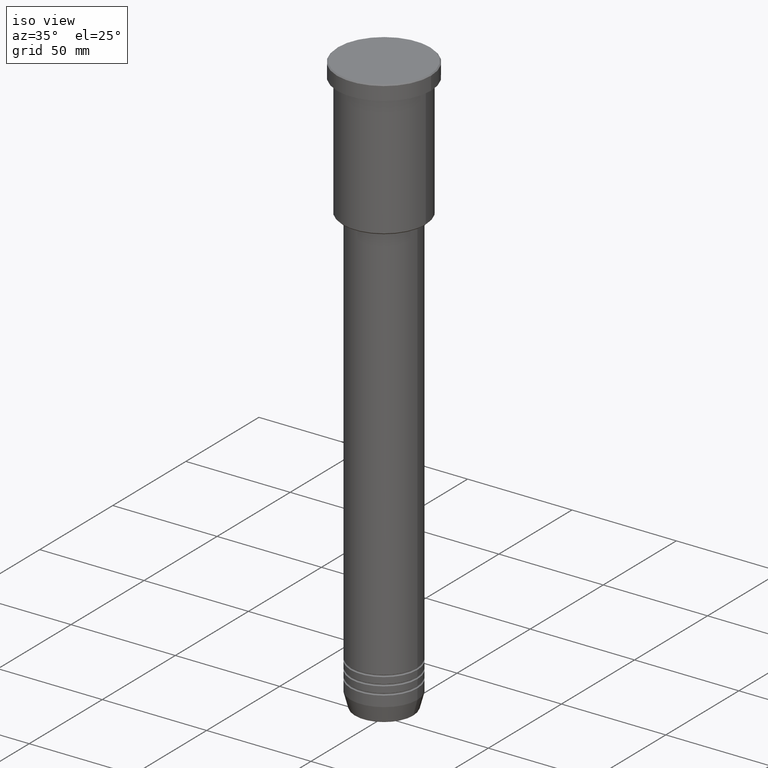
[diagram: clean part render]
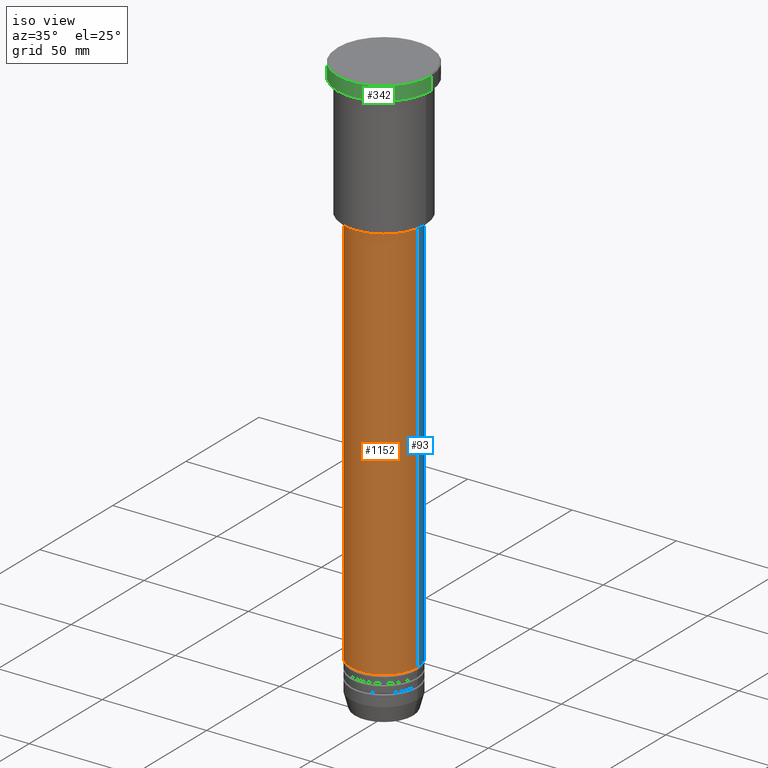
[diagram: same view with three faces highlighted in distinct colors, each labeled with its STEP entity id]
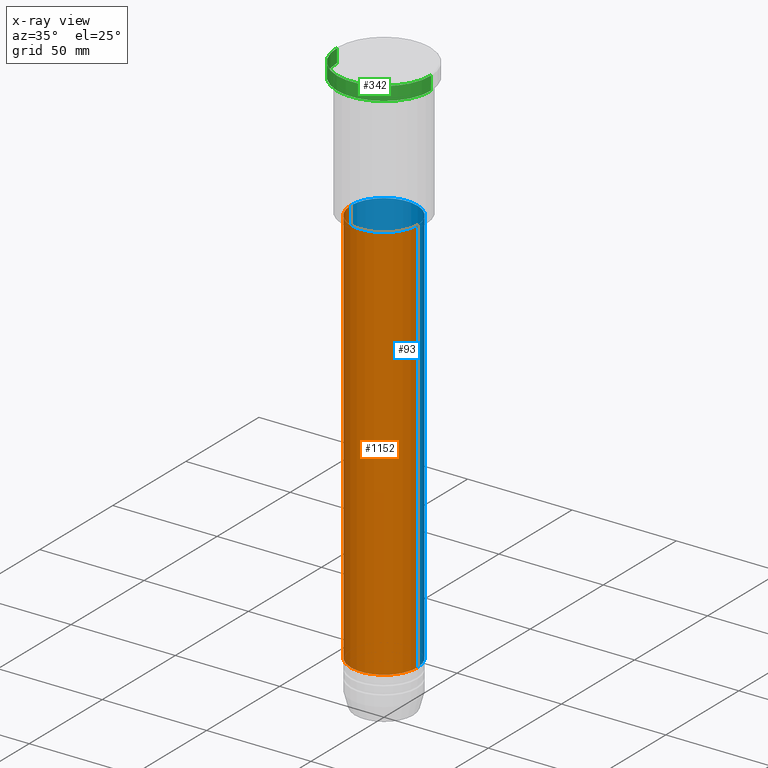
[diagram: x-ray of the same camera — body ghosted, the three highlighted faces saturated]
A machine part, iso view with three faces highlighted in distinct colors.
The next image is the same camera in x-ray (body ghosted, the three faces saturated) — at least one of them is partly hidden behind the body in this view.
Their STEP definitions:

[orange] entity #1152 — the highlighted cylindrical surface (partial cylindrical patch) has radius 16 mm, axis along (-0, -0, 1).
#5 = DIRECTION ( 'NONE',  ( -0.000000000000000000, -0.000000000000000000, 1.000000000000000000 ) ) ;
#45 = CARTESIAN_POINT ( 'NONE',  ( -16.00000000000000000, 1.959434878635765131E-15, -258.5000000000000000 ) ) ;
#120 = ORIENTED_EDGE ( 'NONE', *, *, #861, .F. ) ;
#148 = DIRECTION ( 'NONE',  ( 1.000000000000000000, 0.000000000000000000, 0.000000000000000000 ) ) ;
#219 = VERTEX_POINT ( 'NONE', #45 ) ;
#232 = CARTESIAN_POINT ( 'NONE',  ( -16.00000000000000000, 1.959434878635765131E-15, -67.00000000000000000 ) ) ;
#251 = CARTESIAN_POINT ( 'NONE',  ( 0.000000000000000000, 0.000000000000000000, -258.5000000000000000 ) ) ;
#254 = FACE_OUTER_BOUND ( 'NONE', #449, .T. ) ;
#265 = DIRECTION ( 'NONE',  ( 1.000000000000000000, 0.000000000000000000, 0.000000000000000000 ) ) ;
#292 = LINE ( 'NONE', #635, #1179 ) ;
#363 = CARTESIAN_POINT ( 'NONE',  ( 0.000000000000000000, 0.000000000000000000, -67.00000000000000000 ) ) ;
#449 = EDGE_LOOP ( 'NONE', ( #1093, #598, #899, #120 ) ) ;
#457 = LINE ( 'NONE', #1088, #905 ) ;
#547 = DIRECTION ( 'NONE',  ( -0.000000000000000000, -0.000000000000000000, 1.000000000000000000 ) ) ;
#598 = ORIENTED_EDGE ( 'NONE', *, *, #740, .T. ) ;
#635 = CARTESIAN_POINT ( 'NONE',  ( 16.00000000000000000, 0.000000000000000000, 0.000000000000000000 ) ) ;
#660 = CIRCLE ( 'NONE', #1063, 16.00000000000000000 ) ;
#670 = VERTEX_POINT ( 'NONE', #869 ) ;
#740 = EDGE_CURVE ( 'NONE', #219, #1099, #1019, .T. ) ;
#768 = CARTESIAN_POINT ( 'NONE',  ( 16.00000000000000000, 0.000000000000000000, -258.5000000000000000 ) ) ;
#777 = AXIS2_PLACEMENT_3D ( 'NONE', #797, #1166, #148 ) ;
#797 = CARTESIAN_POINT ( 'NONE',  ( 0.000000000000000000, 0.000000000000000000, 0.000000000000000000 ) ) ;
#826 = AXIS2_PLACEMENT_3D ( 'NONE', #251, #894, #265 ) ;
#861 = EDGE_CURVE ( 'NONE', #1008, #670, #660, .T. ) ;
#869 = CARTESIAN_POINT ( 'NONE',  ( 16.00000000000000000, 0.000000000000000000, -67.00000000000000000 ) ) ;
#870 = EDGE_CURVE ( 'NONE', #219, #1008, #457, .T. ) ;
#894 = DIRECTION ( 'NONE',  ( -0.000000000000000000, -0.000000000000000000, 1.000000000000000000 ) ) ;
#899 = ORIENTED_EDGE ( 'NONE', *, *, #923, .T. ) ;
#905 = VECTOR ( 'NONE', #5, 1000.000000000000000 ) ;
#910 = DIRECTION ( 'NONE',  ( -0.000000000000000000, -0.000000000000000000, 1.000000000000000000 ) ) ;
#915 = DIRECTION ( 'NONE',  ( 1.000000000000000000, 0.000000000000000000, 0.000000000000000000 ) ) ;
#923 = EDGE_CURVE ( 'NONE', #1099, #670, #292, .T. ) ;
#1008 = VERTEX_POINT ( 'NONE', #232 ) ;
#1019 = CIRCLE ( 'NONE', #826, 16.00000000000000000 ) ;
#1063 = AXIS2_PLACEMENT_3D ( 'NONE', #363, #910, #915 ) ;
#1075 = CYLINDRICAL_SURFACE ( 'NONE', #777, 16.00000000000000000 ) ;
#1088 = CARTESIAN_POINT ( 'NONE',  ( -16.00000000000000000, 1.959434878635765131E-15, 0.000000000000000000 ) ) ;
#1093 = ORIENTED_EDGE ( 'NONE', *, *, #870, .F. ) ;
#1099 = VERTEX_POINT ( 'NONE', #768 ) ;
#1152 = ADVANCED_FACE ( 'NONE', ( #254 ), #1075, .T. ) ;
#1166 = DIRECTION ( 'NONE',  ( -0.000000000000000000, -0.000000000000000000, 1.000000000000000000 ) ) ;
#1179 = VECTOR ( 'NONE', #547, 1000.000000000000000 ) ;

[blue] entity #93 — the highlighted cylindrical surface (partial cylindrical patch) has radius 16 mm, axis along (-0, -0, 1).
#5 = DIRECTION ( 'NONE',  ( -0.000000000000000000, -0.000000000000000000, 1.000000000000000000 ) ) ;
#36 = DIRECTION ( 'NONE',  ( -0.000000000000000000, -0.000000000000000000, 1.000000000000000000 ) ) ;
#45 = CARTESIAN_POINT ( 'NONE',  ( -16.00000000000000000, 1.959434878635765131E-15, -258.5000000000000000 ) ) ;
#58 = DIRECTION ( 'NONE',  ( 1.000000000000000000, 0.000000000000000000, 0.000000000000000000 ) ) ;
#93 = ADVANCED_FACE ( 'NONE', ( #482 ), #290, .T. ) ;
#99 = EDGE_LOOP ( 'NONE', ( #264, #644, #1071, #724 ) ) ;
#143 = CARTESIAN_POINT ( 'NONE',  ( 0.000000000000000000, 0.000000000000000000, -67.00000000000000000 ) ) ;
#182 = CIRCLE ( 'NONE', #439, 16.00000000000000000 ) ;
#219 = VERTEX_POINT ( 'NONE', #45 ) ;
#232 = CARTESIAN_POINT ( 'NONE',  ( -16.00000000000000000, 1.959434878635765131E-15, -67.00000000000000000 ) ) ;
#264 = ORIENTED_EDGE ( 'NONE', *, *, #636, .T. ) ;
#290 = CYLINDRICAL_SURFACE ( 'NONE', #435, 16.00000000000000000 ) ;
#292 = LINE ( 'NONE', #635, #1179 ) ;
#335 = AXIS2_PLACEMENT_3D ( 'NONE', #478, #36, #575 ) ;
#435 = AXIS2_PLACEMENT_3D ( 'NONE', #1129, #754, #848 ) ;
#439 = AXIS2_PLACEMENT_3D ( 'NONE', #143, #934, #58 ) ;
#457 = LINE ( 'NONE', #1088, #905 ) ;
#478 = CARTESIAN_POINT ( 'NONE',  ( 0.000000000000000000, 0.000000000000000000, -258.5000000000000000 ) ) ;
#482 = FACE_OUTER_BOUND ( 'NONE', #99, .T. ) ;
#547 = DIRECTION ( 'NONE',  ( -0.000000000000000000, -0.000000000000000000, 1.000000000000000000 ) ) ;
#575 = DIRECTION ( 'NONE',  ( 1.000000000000000000, 0.000000000000000000, 0.000000000000000000 ) ) ;
#576 = EDGE_CURVE ( 'NONE', #670, #1008, #182, .T. ) ;
#635 = CARTESIAN_POINT ( 'NONE',  ( 16.00000000000000000, 0.000000000000000000, 0.000000000000000000 ) ) ;
#636 = EDGE_CURVE ( 'NONE', #1099, #219, #675, .T. ) ;
#644 = ORIENTED_EDGE ( 'NONE', *, *, #870, .T. ) ;
#670 = VERTEX_POINT ( 'NONE', #869 ) ;
#675 = CIRCLE ( 'NONE', #335, 16.00000000000000000 ) ;
#724 = ORIENTED_EDGE ( 'NONE', *, *, #923, .F. ) ;
#754 = DIRECTION ( 'NONE',  ( -0.000000000000000000, -0.000000000000000000, 1.000000000000000000 ) ) ;
#768 = CARTESIAN_POINT ( 'NONE',  ( 16.00000000000000000, 0.000000000000000000, -258.5000000000000000 ) ) ;
#848 = DIRECTION ( 'NONE',  ( 1.000000000000000000, 0.000000000000000000, 0.000000000000000000 ) ) ;
#869 = CARTESIAN_POINT ( 'NONE',  ( 16.00000000000000000, 0.000000000000000000, -67.00000000000000000 ) ) ;
#870 = EDGE_CURVE ( 'NONE', #219, #1008, #457, .T. ) ;
#905 = VECTOR ( 'NONE', #5, 1000.000000000000000 ) ;
#923 = EDGE_CURVE ( 'NONE', #1099, #670, #292, .T. ) ;
#934 = DIRECTION ( 'NONE',  ( -0.000000000000000000, -0.000000000000000000, 1.000000000000000000 ) ) ;
#1008 = VERTEX_POINT ( 'NONE', #232 ) ;
#1071 = ORIENTED_EDGE ( 'NONE', *, *, #576, .F. ) ;
#1088 = CARTESIAN_POINT ( 'NONE',  ( -16.00000000000000000, 1.959434878635765131E-15, 0.000000000000000000 ) ) ;
#1099 = VERTEX_POINT ( 'NONE', #768 ) ;
#1129 = CARTESIAN_POINT ( 'NONE',  ( 0.000000000000000000, 0.000000000000000000, 0.000000000000000000 ) ) ;
#1179 = VECTOR ( 'NONE', #547, 1000.000000000000000 ) ;

[green] entity #342 — the highlighted cylindrical surface (partial cylindrical patch) has radius 22.5 mm, axis along (-0, -0, 1).
#118 = LINE ( 'NONE', #296, #216 ) ;
#126 = EDGE_CURVE ( 'NONE', #171, #297, #118, .T. ) ;
#127 = LINE ( 'NONE', #665, #437 ) ;
#136 = CARTESIAN_POINT ( 'NONE',  ( 0.000000000000000000, 0.000000000000000000, -6.999999999999995559 ) ) ;
#167 = EDGE_CURVE ( 'NONE', #297, #1001, #536, .T. ) ;
#171 = VERTEX_POINT ( 'NONE', #766 ) ;
#173 = CARTESIAN_POINT ( 'NONE',  ( 22.50000000000000000, 0.000000000000000000, -0.4999999999999379940 ) ) ;
#205 = EDGE_CURVE ( 'NONE', #274, #1001, #127, .T. ) ;
#216 = VECTOR ( 'NONE', #917, 1000.000000000000000 ) ;
#221 = CARTESIAN_POINT ( 'NONE',  ( -22.50000000000000000, 2.755455298081544778E-15, -0.4999999999999379940 ) ) ;
#250 = ORIENTED_EDGE ( 'NONE', *, *, #690, .T. ) ;
#258 = AXIS2_PLACEMENT_3D ( 'NONE', #136, #325, #948 ) ;
#274 = VERTEX_POINT ( 'NONE', #687 ) ;
#296 = CARTESIAN_POINT ( 'NONE',  ( 22.50000000000000000, 0.000000000000000000, 0.000000000000000000 ) ) ;
#297 = VERTEX_POINT ( 'NONE', #173 ) ;
#302 = CARTESIAN_POINT ( 'NONE',  ( 0.000000000000000000, 0.000000000000000000, -0.4999999999999379940 ) ) ;
#325 = DIRECTION ( 'NONE',  ( -0.000000000000000000, -0.000000000000000000, 1.000000000000000000 ) ) ;
#333 = ORIENTED_EDGE ( 'NONE', *, *, #205, .F. ) ;
#342 = ADVANCED_FACE ( 'NONE', ( #693 ), #533, .T. ) ;
#437 = VECTOR ( 'NONE', #830, 1000.000000000000000 ) ;
#533 = CYLINDRICAL_SURFACE ( 'NONE', #997, 22.50000000000000000 ) ;
#536 = CIRCLE ( 'NONE', #692, 22.50000000000000000 ) ;
#567 = DIRECTION ( 'NONE',  ( 0.000000000000000000, 0.000000000000000000, -1.000000000000000000 ) ) ;
#665 = CARTESIAN_POINT ( 'NONE',  ( -22.50000000000000000, 2.755455298081544778E-15, 0.000000000000000000 ) ) ;
#683 = CARTESIAN_POINT ( 'NONE',  ( 0.000000000000000000, 0.000000000000000000, 0.000000000000000000 ) ) ;
#684 = EDGE_LOOP ( 'NONE', ( #333, #250, #1057, #998 ) ) ;
#687 = CARTESIAN_POINT ( 'NONE',  ( -22.50000000000000000, 2.755455298081544778E-15, -6.999999999999995559 ) ) ;
#690 = EDGE_CURVE ( 'NONE', #274, #171, #846, .T. ) ;
#692 = AXIS2_PLACEMENT_3D ( 'NONE', #302, #567, #1033 ) ;
#693 = FACE_OUTER_BOUND ( 'NONE', #684, .T. ) ;
#766 = CARTESIAN_POINT ( 'NONE',  ( 22.50000000000000000, 0.000000000000000000, -6.999999999999995559 ) ) ;
#830 = DIRECTION ( 'NONE',  ( -0.000000000000000000, -0.000000000000000000, 1.000000000000000000 ) ) ;
#846 = CIRCLE ( 'NONE', #258, 22.50000000000000000 ) ;
#917 = DIRECTION ( 'NONE',  ( -0.000000000000000000, -0.000000000000000000, 1.000000000000000000 ) ) ;
#948 = DIRECTION ( 'NONE',  ( 1.000000000000000000, 0.000000000000000000, 0.000000000000000000 ) ) ;
#949 = DIRECTION ( 'NONE',  ( 1.000000000000000000, 0.000000000000000000, 0.000000000000000000 ) ) ;
#997 = AXIS2_PLACEMENT_3D ( 'NONE', #683, #1060, #949 ) ;
#998 = ORIENTED_EDGE ( 'NONE', *, *, #167, .T. ) ;
#1001 = VERTEX_POINT ( 'NONE', #221 ) ;
#1033 = DIRECTION ( 'NONE',  ( 1.000000000000000000, 0.000000000000000000, 0.000000000000000000 ) ) ;
#1057 = ORIENTED_EDGE ( 'NONE', *, *, #126, .T. ) ;
#1060 = DIRECTION ( 'NONE',  ( -0.000000000000000000, -0.000000000000000000, 1.000000000000000000 ) ) ;